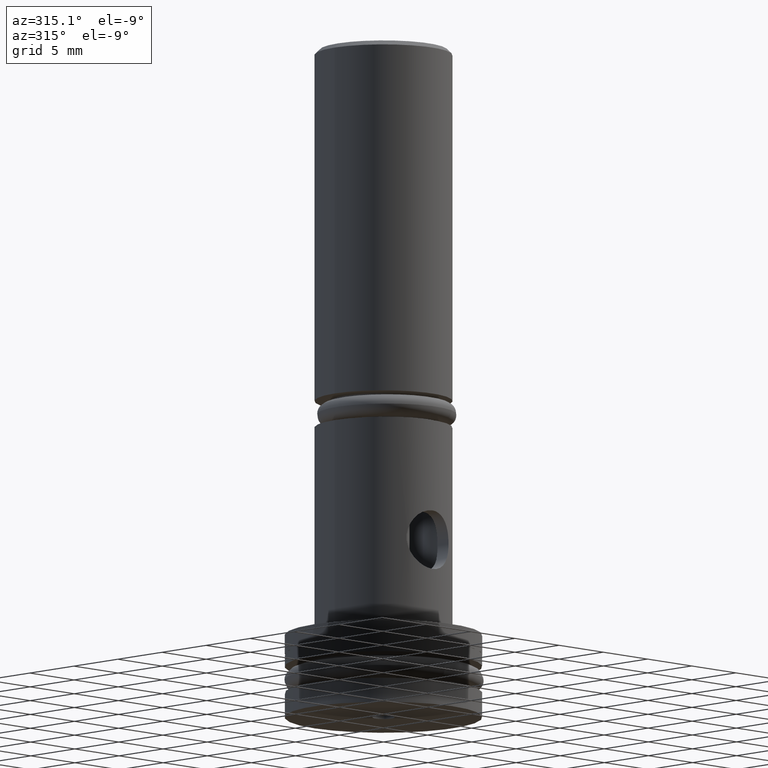
[diagram: clean part render]
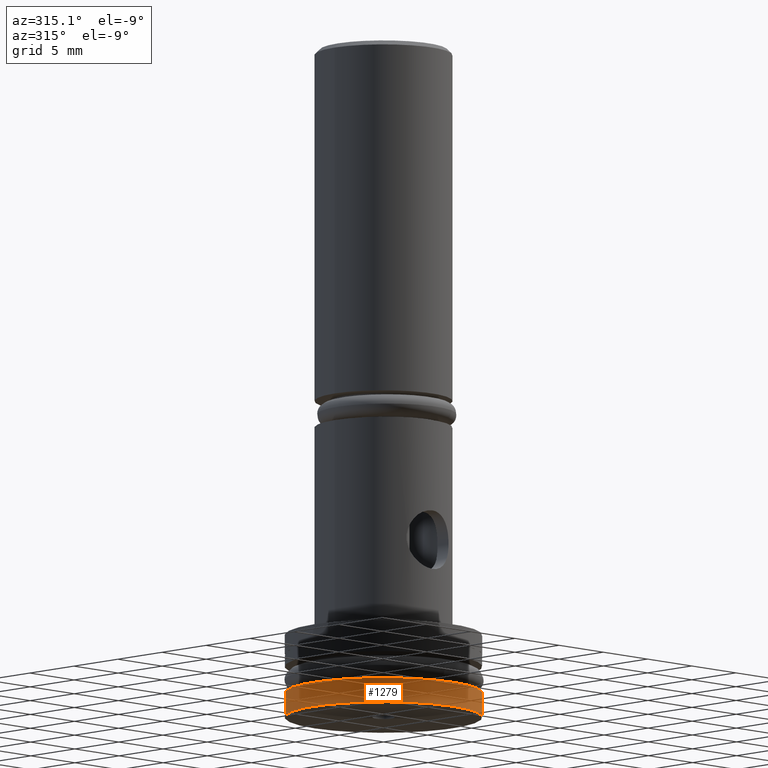
[diagram: same view with one face highlighted and labeled with its STEP entity id]
A machine part, auxiliary view. The second image highlights one B-rep face of the part: STEP entity #1279.
In plain terms, the highlighted cylindrical surface (partial cylindrical patch) has radius 7.9248 mm, axis along (-0, 0, -1).
Its self-contained STEP definition (entity closure, byte-faithful):
#228 = ORIENTED_EDGE ( 'NONE', *, *, #853, .F. ) ;
#229 = ORIENTED_EDGE ( 'NONE', *, *, #1705, .T. ) ;
#230 = ORIENTED_EDGE ( 'NONE', *, *, #1153, .T. ) ;
#231 = ORIENTED_EDGE ( 'NONE', *, *, #1749, .F. ) ;
#533 = CARTESIAN_POINT ( 'NONE',  ( 0.0000000000000000000, 0.0000000000000000000, -0.1230000000000000300 ) ) ;
#534 = DIRECTION ( 'NONE',  ( -0.0000000000000000000, -0.0000000000000000000, -1.000000000000000000 ) ) ;
#535 = DIRECTION ( 'NONE',  ( -1.000000000000000000, 0.0000000000000000000, 0.0000000000000000000 ) ) ;
#747 = VERTEX_POINT ( 'NONE', #2144 ) ;
#754 = VERTEX_POINT ( 'NONE', #2150 ) ;
#757 = VERTEX_POINT ( 'NONE', #2153 ) ;
#760 = VERTEX_POINT ( 'NONE', #2156 ) ;
#853 = EDGE_CURVE ( 'NONE', #760, #757, #1343, .T. ) ;
#928 = CARTESIAN_POINT ( 'NONE',  ( 0.0000000000000000000, 0.0000000000000000000, -0.2000000000000000100 ) ) ;
#929 = DIRECTION ( 'NONE',  ( -0.0000000000000000000, -0.0000000000000000000, -1.000000000000000000 ) ) ;
#930 = DIRECTION ( 'NONE',  ( -1.000000000000000000, 0.0000000000000000000, 0.0000000000000000000 ) ) ;
#1153 = EDGE_CURVE ( 'NONE', #747, #754, #1355, .T. ) ;
#1232 = EDGE_LOOP ( 'NONE', ( #228, #229, #230, #231 ) ) ;
#1279 = ADVANCED_FACE ( 'NONE', ( #1379 ), #1380, .T. ) ;
#1343 = LINE ( 'NONE', #2259, #1344 ) ;
#1344 = VECTOR ( 'NONE', #2260, 39.37007874015748100 ) ;
#1355 = LINE ( 'NONE', #2290, #1357 ) ;
#1357 = VECTOR ( 'NONE', #2291, 39.37007874015748100 ) ;
#1379 = FACE_OUTER_BOUND ( 'NONE', #1232, .T. ) ;
#1380 = CYLINDRICAL_SURFACE ( 'NONE', #1881, 0.3120000000000000000 ) ;
#1455 = CIRCLE ( 'NONE', #1918, 0.3120000000000000000 ) ;
#1507 = CIRCLE ( 'NONE', #1944, 0.3120000000000000000 ) ;
#1705 = EDGE_CURVE ( 'NONE', #760, #747, #1455, .T. ) ;
#1749 = EDGE_CURVE ( 'NONE', #757, #754, #1507, .T. ) ;
#1881 = AXIS2_PLACEMENT_3D ( 'NONE', #2331, #2332, #2333 ) ;
#1918 = AXIS2_PLACEMENT_3D ( 'NONE', #533, #534, #535 ) ;
#1944 = AXIS2_PLACEMENT_3D ( 'NONE', #928, #929, #930 ) ;
#2144 = CARTESIAN_POINT ( 'NONE',  ( -0.3120000000000000000, 0.0000000000000000000, -0.1230000000000000300 ) ) ;
#2150 = CARTESIAN_POINT ( 'NONE',  ( -0.3120000000000000000, 0.0000000000000000000, -0.2000000000000000100 ) ) ;
#2153 = CARTESIAN_POINT ( 'NONE',  ( 0.3120000000000000000, 3.820898013339742200E-017, -0.2000000000000000100 ) ) ;
#2156 = CARTESIAN_POINT ( 'NONE',  ( 0.3120000000000000000, 3.820898013339742200E-017, -0.1230000000000000300 ) ) ;
#2259 = CARTESIAN_POINT ( 'NONE',  ( 0.3120000000000000000, 3.820898013339742200E-017, -0.2928196444417974200 ) ) ;
#2260 = DIRECTION ( 'NONE',  ( -0.0000000000000000000, -0.0000000000000000000, -1.000000000000000000 ) ) ;
#2290 = CARTESIAN_POINT ( 'NONE',  ( -0.3120000000000000000, 0.0000000000000000000, -0.2928196444417974200 ) ) ;
#2291 = DIRECTION ( 'NONE',  ( -0.0000000000000000000, -0.0000000000000000000, -1.000000000000000000 ) ) ;
#2331 = CARTESIAN_POINT ( 'NONE',  ( 0.0000000000000000000, 0.0000000000000000000, -0.2928196444417974200 ) ) ;
#2332 = DIRECTION ( 'NONE',  ( -0.0000000000000000000, -0.0000000000000000000, -1.000000000000000000 ) ) ;
#2333 = DIRECTION ( 'NONE',  ( -1.000000000000000000, 0.0000000000000000000, 0.0000000000000000000 ) ) ;